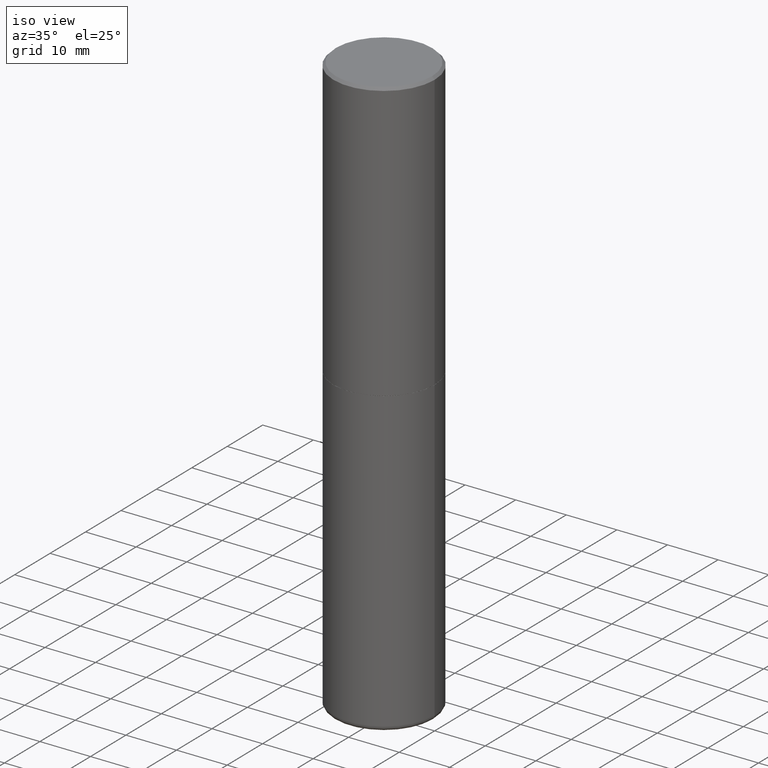
[diagram: clean part render]
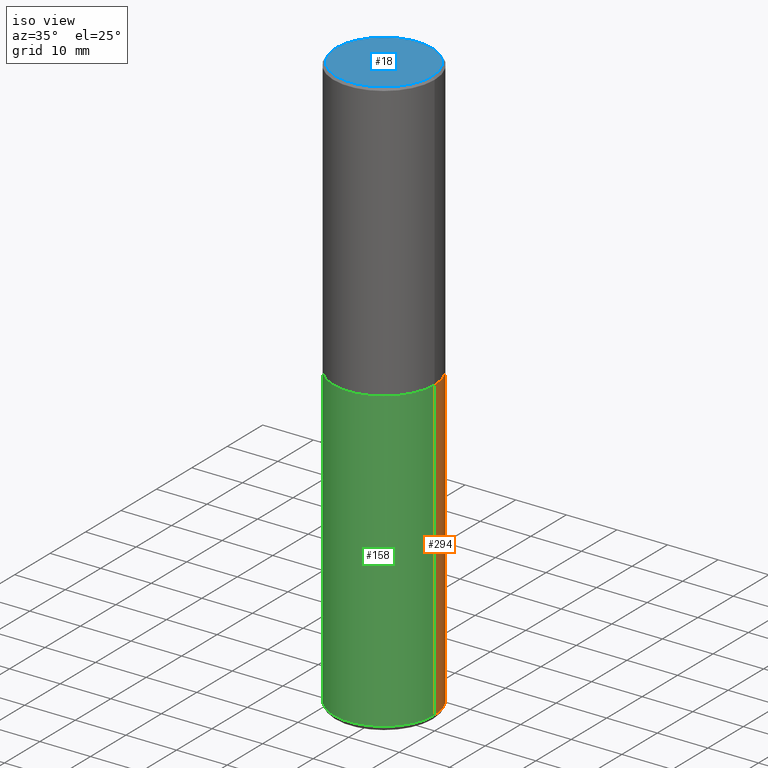
[diagram: same view with three faces highlighted in distinct colors, each labeled with its STEP entity id]
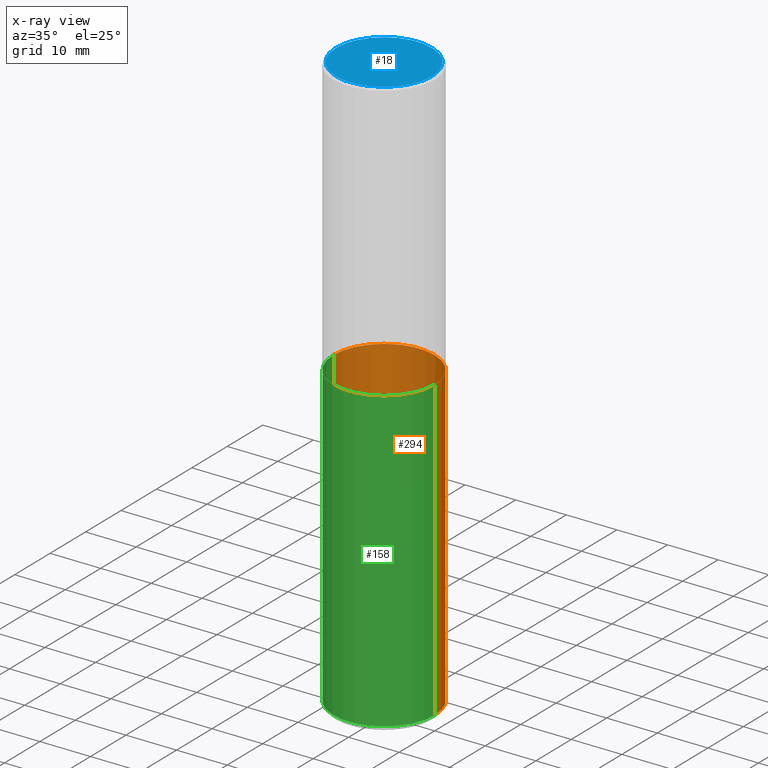
[diagram: x-ray of the same camera — body ghosted, the three highlighted faces saturated]
A machine part, iso view with three faces highlighted in distinct colors.
The next image is the same camera in x-ray (body ghosted, the three faces saturated) — at least one of them is partly hidden behind the body in this view.
Their STEP definitions:

[orange] entity #294 — the highlighted cylindrical surface (partial cylindrical patch) has radius 10 mm, axis along (-0, 0, 1).
#2 = EDGE_LOOP ( 'NONE', ( #132, #71, #366, #208 ) ) ;
#4 = CARTESIAN_POINT ( 'NONE',  ( -0.3937000000000000499, 2.797406750687514786E-15, -1.936584745033356735E-29 ) ) ;
#17 = CARTESIAN_POINT ( 'NONE',  ( 5.295418152913293224E-29, -7.560453691130945845E-15, -2.165399999999999547 ) ) ;
#33 = EDGE_CURVE ( 'NONE', #293, #326, #407, .T. ) ;
#49 = VECTOR ( 'NONE', #365, 39.37007874015748143 ) ;
#52 = VERTEX_POINT ( 'NONE', #364 ) ;
#71 = ORIENTED_EDGE ( 'NONE', *, *, #297, .T. ) ;
#80 = DIRECTION ( 'NONE',  ( -2.445468806185136597E-29, 3.491481338843145583E-15, 1.000000000000000000 ) ) ;
#81 = DIRECTION ( 'NONE',  ( 1.000000000000000000, -6.982962677686265922E-15, 4.876176775795935793E-29 ) ) ;
#84 = AXIS2_PLACEMENT_3D ( 'NONE', #17, #80, #197 ) ;
#103 = CARTESIAN_POINT ( 'NONE',  ( 0.3937000000000002164, -1.841965895120088790E-14, -4.488199999999999079 ) ) ;
#106 = DIRECTION ( 'NONE',  ( -2.445468806185136597E-29, 3.491481338843145583E-15, 1.000000000000000000 ) ) ;
#109 = LINE ( 'NONE', #4, #299 ) ;
#115 = AXIS2_PLACEMENT_3D ( 'NONE', #298, #106, #81 ) ;
#132 = ORIENTED_EDGE ( 'NONE', *, *, #33, .T. ) ;
#134 = EDGE_CURVE ( 'NONE', #52, #391, #403, .T. ) ;
#137 = CARTESIAN_POINT ( 'NONE',  ( -0.3937000000000002164, -1.287305979430828753E-14, -4.488199999999999079 ) ) ;
#142 = DIRECTION ( 'NONE',  ( 1.000000000000000000, -6.982962677686262766E-15, 0.000000000000000000 ) ) ;
#167 = CYLINDRICAL_SURFACE ( 'NONE', #115, 0.3937000000000000499 ) ;
#195 = FACE_OUTER_BOUND ( 'NONE', #2, .T. ) ;
#197 = DIRECTION ( 'NONE',  ( 1.000000000000000000, -6.982962677686265133E-15, 0.000000000000000000 ) ) ;
#205 = CARTESIAN_POINT ( 'NONE',  ( -0.3937000000000000499, -8.818053367375859687E-15, -2.165399999999999547 ) ) ;
#208 = ORIENTED_EDGE ( 'NONE', *, *, #355, .F. ) ;
#242 = DIRECTION ( 'NONE',  ( -2.445468806185136597E-29, 3.491481338843145583E-15, 1.000000000000000000 ) ) ;
#273 = AXIS2_PLACEMENT_3D ( 'NONE', #337, #242, #142 ) ;
#293 = VERTEX_POINT ( 'NONE', #103 ) ;
#294 = ADVANCED_FACE ( 'NONE', ( #195 ), #167, .T. ) ;
#297 = EDGE_CURVE ( 'NONE', #326, #391, #109, .T. ) ;
#298 = CARTESIAN_POINT ( 'NONE',  ( 0.000000000000000000, 0.000000000000000000, 0.000000000000000000 ) ) ;
#299 = VECTOR ( 'NONE', #369, 39.37007874015748143 ) ;
#326 = VERTEX_POINT ( 'NONE', #137 ) ;
#330 = LINE ( 'NONE', #397, #49 ) ;
#337 = CARTESIAN_POINT ( 'NONE',  ( 1.097575309592012950E-28, -1.567046654499580152E-14, -4.488199999999999079 ) ) ;
#355 = EDGE_CURVE ( 'NONE', #293, #52, #330, .T. ) ;
#364 = CARTESIAN_POINT ( 'NONE',  ( 0.3937000000000000499, -1.030964609733602906E-14, -2.165399999999999547 ) ) ;
#365 = DIRECTION ( 'NONE',  ( -2.445468806185136877E-29, 3.491481338843145188E-15, 1.000000000000000000 ) ) ;
#366 = ORIENTED_EDGE ( 'NONE', *, *, #134, .F. ) ;
#369 = DIRECTION ( 'NONE',  ( -2.445468806185136877E-29, 3.491481338843145188E-15, 1.000000000000000000 ) ) ;
#391 = VERTEX_POINT ( 'NONE', #205 ) ;
#397 = CARTESIAN_POINT ( 'NONE',  ( 0.3937000000000000499, -2.749192406205083217E-15, 1.919750796630860172E-29 ) ) ;
#403 = CIRCLE ( 'NONE', #84, 0.3937000000000000499 ) ;
#407 = CIRCLE ( 'NONE', #273, 0.3937000000000000499 ) ;

[blue] entity #18 — the highlighted planar face has unit normal (0, -0, -1).
#10 = VERTEX_POINT ( 'NONE', #56 ) ;
#18 = ADVANCED_FACE ( 'NONE', ( #401 ), #266, .F. ) ;
#25 = AXIS2_PLACEMENT_3D ( 'NONE', #399, #304, #82 ) ;
#55 = CIRCLE ( 'NONE', #248, 0.3737000000000003097 ) ;
#56 = CARTESIAN_POINT ( 'NONE',  ( -0.3737000000000003097, 2.644447966039789847E-15, -2.219626494852397645E-16 ) ) ;
#82 = DIRECTION ( 'NONE',  ( 1.000000000000000000, -6.982962677686266711E-15, 4.877734241229871763E-29 ) ) ;
#112 = CARTESIAN_POINT ( 'NONE',  ( 0.3737000000000003097, -2.667287895133369937E-15, -2.219626494852029345E-16 ) ) ;
#113 = VERTEX_POINT ( 'NONE', #112 ) ;
#130 = EDGE_CURVE ( 'NONE', #113, #10, #55, .T. ) ;
#176 = DIRECTION ( 'NONE',  ( -1.000000000000000000, 6.982962677686265922E-15, -4.876176775795935793E-29 ) ) ;
#229 = DIRECTION ( 'NONE',  ( 1.000000000000000000, -6.982962677686266711E-15, 4.877734241229871763E-29 ) ) ;
#232 = CARTESIAN_POINT ( 'NONE',  ( 5.428027354543142984E-45, -7.749784485978325769E-31, -2.219626494852213988E-16 ) ) ;
#248 = AXIS2_PLACEMENT_3D ( 'NONE', #232, #368, #229 ) ;
#266 = PLANE ( 'NONE',  #334 ) ;
#275 = CARTESIAN_POINT ( 'NONE',  ( 2.609533152651359776E-15, 0.3737000000000003097, -1.415747901068295320E-15 ) ) ;
#281 = ORIENTED_EDGE ( 'NONE', *, *, #411, .T. ) ;
#290 = ORIENTED_EDGE ( 'NONE', *, *, #130, .T. ) ;
#304 = DIRECTION ( 'NONE',  ( -2.445468806185136597E-29, 3.491481338843145583E-15, 1.000000000000000000 ) ) ;
#334 = AXIS2_PLACEMENT_3D ( 'NONE', #275, #405, #176 ) ;
#361 = EDGE_LOOP ( 'NONE', ( #281, #290 ) ) ;
#368 = DIRECTION ( 'NONE',  ( -2.445468806185136597E-29, 3.491481338843145583E-15, 1.000000000000000000 ) ) ;
#379 = CIRCLE ( 'NONE', #25, 0.3737000000000003097 ) ;
#399 = CARTESIAN_POINT ( 'NONE',  ( 5.428027354543142984E-45, -7.749784485978325769E-31, -2.219626494852213988E-16 ) ) ;
#401 = FACE_OUTER_BOUND ( 'NONE', #361, .T. ) ;
#405 = DIRECTION ( 'NONE',  ( 2.438088387897960049E-29, -3.491481338843145188E-15, -1.000000000000000000 ) ) ;
#411 = EDGE_CURVE ( 'NONE', #10, #113, #379, .T. ) ;

[green] entity #158 — the highlighted cylindrical surface (partial cylindrical patch) has radius 10 mm, axis along (-0, 0, 1).
#4 = CARTESIAN_POINT ( 'NONE',  ( -0.3937000000000000499, 2.797406750687514786E-15, -1.936584745033356735E-29 ) ) ;
#6 = CARTESIAN_POINT ( 'NONE',  ( 5.295418152913293224E-29, -7.560453691130945845E-15, -2.165399999999999547 ) ) ;
#22 = ORIENTED_EDGE ( 'NONE', *, *, #359, .T. ) ;
#26 = ORIENTED_EDGE ( 'NONE', *, *, #297, .F. ) ;
#45 = CARTESIAN_POINT ( 'NONE',  ( 1.097575309592012950E-28, -1.567046654499580152E-14, -4.488199999999999079 ) ) ;
#49 = VECTOR ( 'NONE', #365, 39.37007874015748143 ) ;
#51 = DIRECTION ( 'NONE',  ( -2.445468806185136597E-29, 3.491481338843145583E-15, 1.000000000000000000 ) ) ;
#52 = VERTEX_POINT ( 'NONE', #364 ) ;
#53 = DIRECTION ( 'NONE',  ( 1.000000000000000000, -6.982962677686262766E-15, 0.000000000000000000 ) ) ;
#103 = CARTESIAN_POINT ( 'NONE',  ( 0.3937000000000002164, -1.841965895120088790E-14, -4.488199999999999079 ) ) ;
#109 = LINE ( 'NONE', #4, #299 ) ;
#110 = DIRECTION ( 'NONE',  ( -2.445468806185136597E-29, 3.491481338843145583E-15, 1.000000000000000000 ) ) ;
#114 = EDGE_CURVE ( 'NONE', #391, #52, #192, .T. ) ;
#119 = EDGE_LOOP ( 'NONE', ( #26, #22, #356, #226 ) ) ;
#121 = AXIS2_PLACEMENT_3D ( 'NONE', #45, #233, #53 ) ;
#137 = CARTESIAN_POINT ( 'NONE',  ( -0.3937000000000002164, -1.287305979430828753E-14, -4.488199999999999079 ) ) ;
#158 = ADVANCED_FACE ( 'NONE', ( #236 ), #372, .T. ) ;
#192 = CIRCLE ( 'NONE', #387, 0.3937000000000000499 ) ;
#202 = CARTESIAN_POINT ( 'NONE',  ( 0.000000000000000000, 0.000000000000000000, 0.000000000000000000 ) ) ;
#205 = CARTESIAN_POINT ( 'NONE',  ( -0.3937000000000000499, -8.818053367375859687E-15, -2.165399999999999547 ) ) ;
#211 = AXIS2_PLACEMENT_3D ( 'NONE', #202, #51, #218 ) ;
#218 = DIRECTION ( 'NONE',  ( 1.000000000000000000, -6.982962677686265922E-15, 4.876176775795935793E-29 ) ) ;
#226 = ORIENTED_EDGE ( 'NONE', *, *, #114, .F. ) ;
#233 = DIRECTION ( 'NONE',  ( -2.445468806185136597E-29, 3.491481338843145583E-15, 1.000000000000000000 ) ) ;
#236 = FACE_OUTER_BOUND ( 'NONE', #119, .T. ) ;
#244 = CIRCLE ( 'NONE', #121, 0.3937000000000000499 ) ;
#293 = VERTEX_POINT ( 'NONE', #103 ) ;
#297 = EDGE_CURVE ( 'NONE', #326, #391, #109, .T. ) ;
#299 = VECTOR ( 'NONE', #369, 39.37007874015748143 ) ;
#305 = DIRECTION ( 'NONE',  ( 1.000000000000000000, -6.982962677686265133E-15, 0.000000000000000000 ) ) ;
#326 = VERTEX_POINT ( 'NONE', #137 ) ;
#330 = LINE ( 'NONE', #397, #49 ) ;
#355 = EDGE_CURVE ( 'NONE', #293, #52, #330, .T. ) ;
#356 = ORIENTED_EDGE ( 'NONE', *, *, #355, .T. ) ;
#359 = EDGE_CURVE ( 'NONE', #326, #293, #244, .T. ) ;
#364 = CARTESIAN_POINT ( 'NONE',  ( 0.3937000000000000499, -1.030964609733602906E-14, -2.165399999999999547 ) ) ;
#365 = DIRECTION ( 'NONE',  ( -2.445468806185136877E-29, 3.491481338843145188E-15, 1.000000000000000000 ) ) ;
#369 = DIRECTION ( 'NONE',  ( -2.445468806185136877E-29, 3.491481338843145188E-15, 1.000000000000000000 ) ) ;
#372 = CYLINDRICAL_SURFACE ( 'NONE', #211, 0.3937000000000000499 ) ;
#387 = AXIS2_PLACEMENT_3D ( 'NONE', #6, #110, #305 ) ;
#391 = VERTEX_POINT ( 'NONE', #205 ) ;
#397 = CARTESIAN_POINT ( 'NONE',  ( 0.3937000000000000499, -2.749192406205083217E-15, 1.919750796630860172E-29 ) ) ;